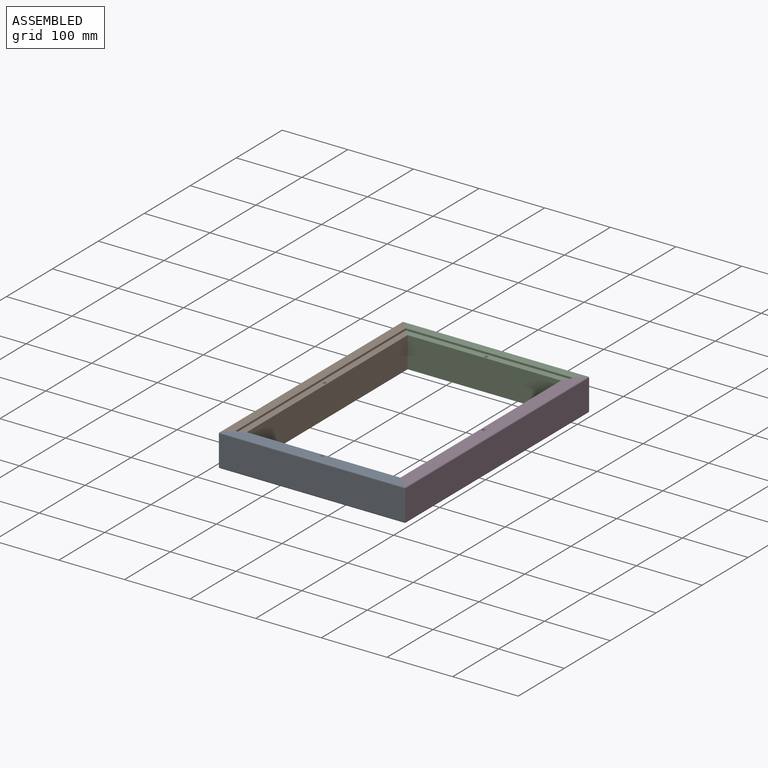
[diagram: assembled view]
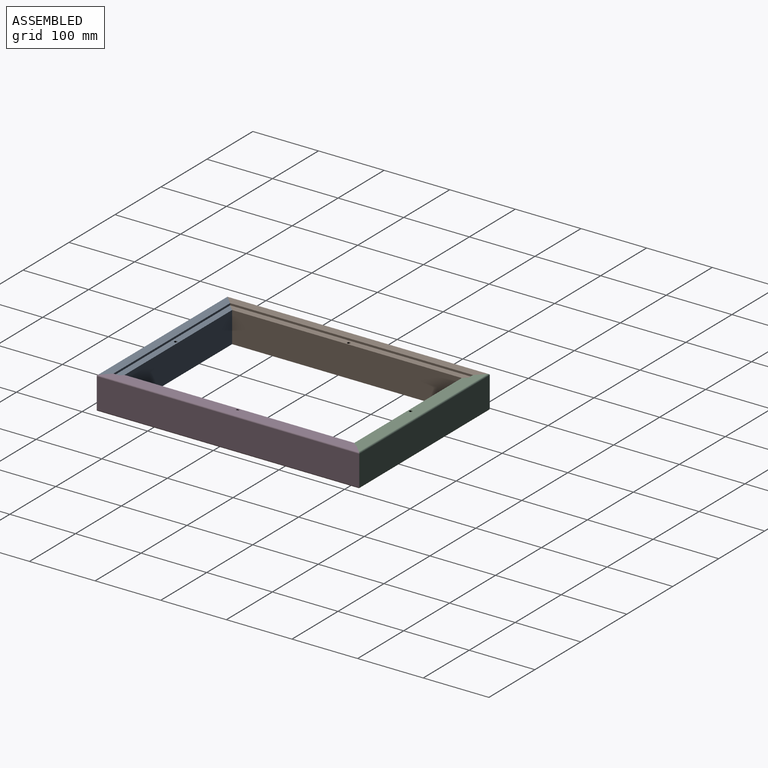
[diagram: assembled view, second angle]
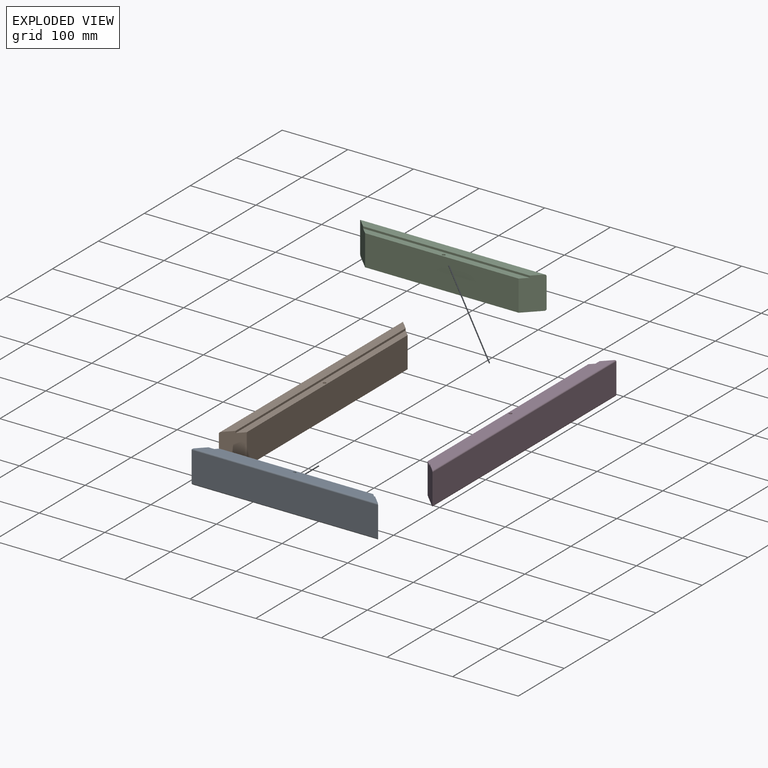
[diagram: exploded view]
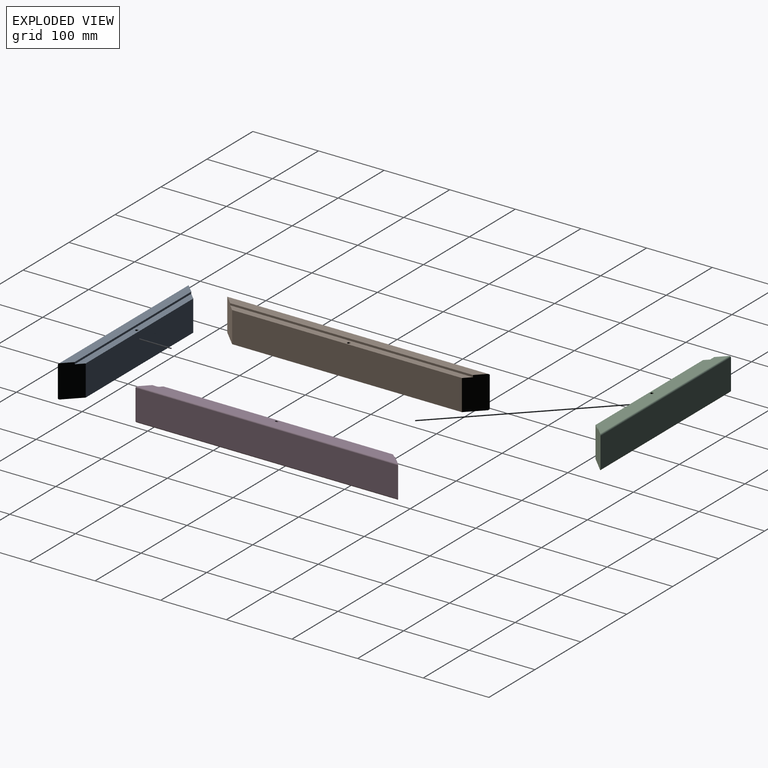
[diagram: exploded view, second angle]
ASSEMBLY  parts=4 mates=3
PART A: 12 faces, bbox 284x25x50 mm
  f0: plane 280x13mm, normal (0,0,1), area 3471mm2, adj f2,f5,f6,f10
  f1: plane 234x47mm, normal (0,1,0), area 10998mm2, adj f2,f3,f5,f7
  f2: plane 50x25mm, normal (0.71,0.71,0), area 1722.9mm2, adj f0,f1,f3,f4,f6,f7,f10,f11
  f3: plane 280x23mm, normal (0,0,-1), area 5911mm2, adj f1,f2,f5,f11
  f4: plane 284x46mm, normal (0,-1,0), area 13064mm2, adj f2,f5,f10,f11
  f5: plane 50x25mm, normal (-0.71,0.71,0), area 1722.9mm2, adj f0,f1,f3,f4,f6,f7,f10,f11
  f6: plane 254x3mm, normal (0,1,0), area 762mm2, adj f0,f2,f5,f7
  f7: plane 254x10mm, normal (0,0,1), area 2423.4mm2, adj f1,f2,f5,f6,f8
  f8: cylinder r=2.3mm len=8mm, axis (0,0,1), area 115.6mm2, adj f7,f9
  f9: cone r=0mm half-angle=59deg, axis (0,0,1), area 19.4mm2, adj f8
  f10: cylinder r=2mm len=284mm, axis (1,0,0), area 887.6mm2, adj f0,f2,f4,f5
  f11: cylinder r=2mm len=284mm, axis (-1,0,0), area 887.6mm2, adj f2,f3,f4,f5
PART B: 12 faces, bbox 400x25x50 mm
  f0: plane 396x13mm, normal (0,0,1), area 4979mm2, adj f2,f5,f6,f10
  f1: plane 350x47mm, normal (0,1,0), area 16450mm2, adj f2,f3,f5,f7
  f2: plane 50x25mm, normal (0.71,0.71,0), area 1722.9mm2, adj f0,f1,f3,f4,f6,f7,f10,f11
  f3: plane 396x23mm, normal (0,0,-1), area 8579mm2, adj f1,f2,f5,f11
  f4: plane 400x46mm, normal (0,-1,0), area 18400mm2, adj f2,f5,f10,f11
  f5: plane 50x25mm, normal (-0.71,0.71,0), area 1722.9mm2, adj f0,f1,f3,f4,f6,f7,f10,f11
  f6: plane 370x3mm, normal (0,1,0), area 1110mm2, adj f0,f2,f5,f7
  f7: plane 370x10mm, normal (0,0,1), area 3583.4mm2, adj f1,f2,f5,f6,f8
  f8: cylinder r=2.3mm len=8mm, axis (0,0,1), area 115.6mm2, adj f7,f9
  f9: cone r=0mm half-angle=59deg, axis (0,0,1), area 19.4mm2, adj f8
  f10: cylinder r=2mm len=400mm, axis (1,0,0), area 1252.1mm2, adj f0,f2,f4,f5
  f11: cylinder r=2mm len=400mm, axis (-1,0,0), area 1252.1mm2, adj f2,f3,f4,f5
PART C: same geometry as A
PART D: same geometry as B
PLACE A t=(59.42,-351.63,48.11)mm
PLACE B rot(axis=(0,0,-1),90deg) t=(-57.58,-176.63,48.11)mm
PLACE C rot(axis=(0,0,1),180deg) t=(59.42,-1.63,48.11)mm
PLACE D rot(axis=(0,0,1),90deg) t=(176.42,-176.63,48.11)mm
MATE fastened A.f2 <-> D.f5  axis (0.71,0.71,0) through (189.09,-364.3,47.53)mm
MATE fastened D.f2 <-> C.f5  axis (-0.71,0.71,0) through (189.09,11.04,47.53)mm
MATE fastened B.f2 <-> A.f5  axis (0.71,-0.71,0) through (-70.24,-364.3,47.53)mm
